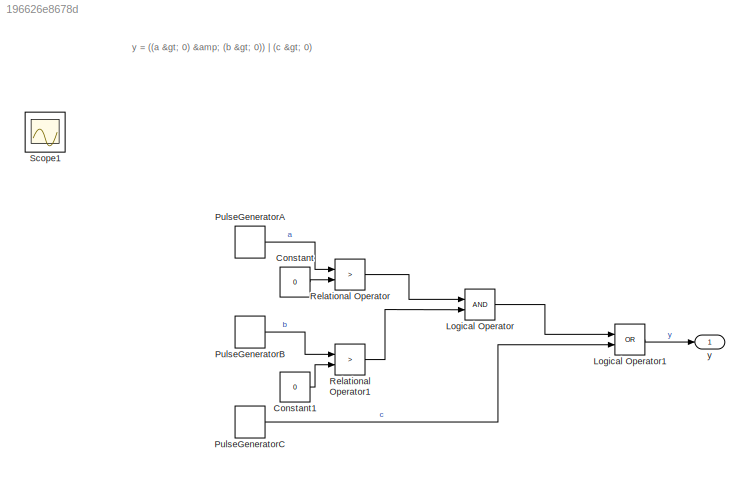
MODEL slx_196626e8678d
KIND model
CONFIG AbsTol = auto
CONFIG EnableMultiTasking = on
CONFIG FixedStep = auto
CONFIG MaxStep = auto
CONFIG MinStep = auto
CONFIG RelTol = 1e-3
CONFIG SampleTimeConstraint = Unconstrained
CONFIG SolverName = VariableStepAuto
CONFIG StartTime = 0.0
CONFIG StopTime = 10.0
BLOCK [Constant] Constant
  Value = 0
BLOCK [Constant] Constant1
  Value = 0
BLOCK [Logic] Logical Operator
  AllPortsSameDT = off
  OutDataTypeStr = boolean
  Ports = [2, 1]
BLOCK [Logic] Logical Operator1
  AllPortsSameDT = off
  Operator = OR
  OutDataTypeStr = boolean
  Ports = [2, 1]
BLOCK [DiscretePulseGenerator] PulseGeneratorA
  Period = 10
  Ports = [0, 1]
  PulseType = Time based
  PulseWidth = 20
BLOCK [DiscretePulseGenerator] PulseGeneratorB
  Period = 10
  PhaseDelay = 1
  Ports = [0, 1]
  PulseType = Time based
  PulseWidth = 20
BLOCK [DiscretePulseGenerator] PulseGeneratorC
  Period = 10
  PhaseDelay = 7
  Ports = [0, 1]
  PulseType = Time based
  PulseWidth = 20
BLOCK [RelationalOperator] Relational Operator
  InputSameDT = off
  Operator = >
  OutDataTypeStr = boolean
  Ports = [2, 1]
  RndMeth = Simplest
BLOCK [RelationalOperator] Relational Operator1
  InputSameDT = off
  Operator = >
  OutDataTypeStr = boolean
  Ports = [2, 1]
  RndMeth = Simplest
BLOCK [Scope] Scope1
  Floating = off
  IOType = viewer
  NumInputPorts = 1
  Ports = []
  ScopeSpecificationString = Simulink.scopes.TimeScopeBlockCfg('CurrentConfiguration', extmgr.ConfigurationSet(extmgr.Configuration('Core','General UI',true),extmgr.Configuration('Core','Source UI',true),extmgr.Configuration('Sources','WiredSimulink',true,'DataLoggingVariableName','ScopeData1','DataLoggingMaxPoints','7500','DataLoggingLimitDataPoints',true,'DataLoggingSaveFormat','Array','DataLoggingDecimation','1','DataLoggi...<+5044ch>
BLOCK [Outport] y
  VectorParamsAs1DForOutWhenUnconnected = off
ANNOTATION (root): y = ((a > 0) & (b > 0)) | (c > 0)
LINE Constant1:1 -> Relational Operator1:2
LINE Constant:1 -> Relational Operator:2
LINE Logical Operator1:1 -> y:1
LINE Logical Operator:1 -> Logical Operator1:1
LINE PulseGeneratorA:1 -> Relational Operator:1
LINE PulseGeneratorB:1 -> Relational Operator1:1
LINE PulseGeneratorC:1 -> Logical Operator1:2
LINE Relational Operator1:1 -> Logical Operator:2
LINE Relational Operator:1 -> Logical Operator:1
